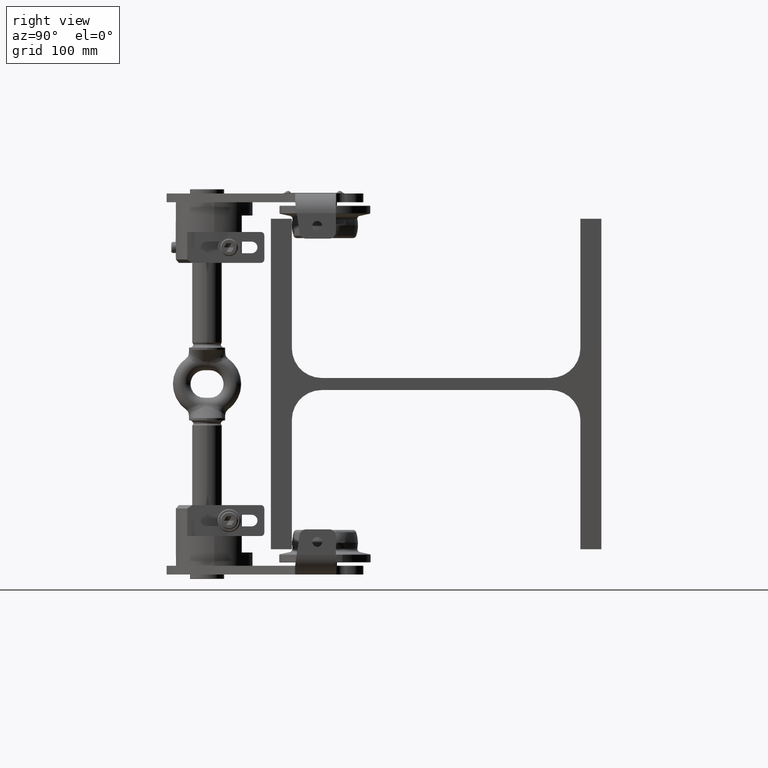
[diagram: clean part render]
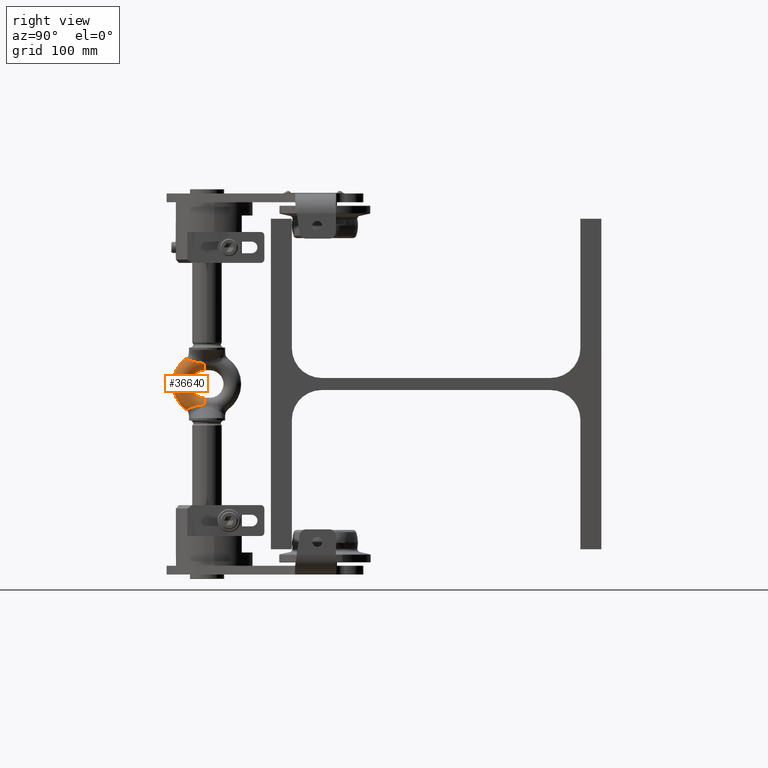
[diagram: same view with one face highlighted and labeled with its STEP entity id]
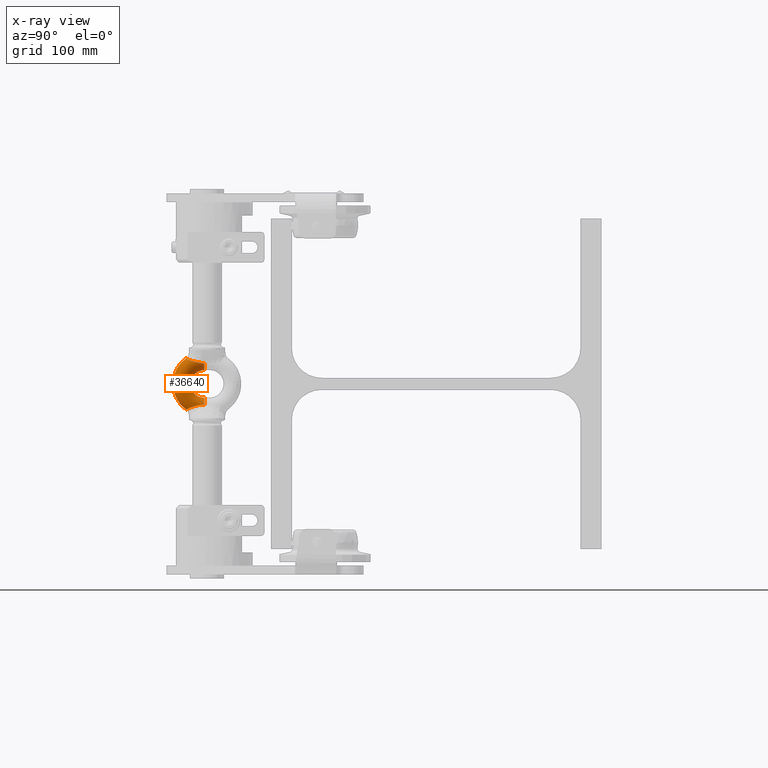
[diagram: x-ray of the same camera — body ghosted, the highlighted face saturated]
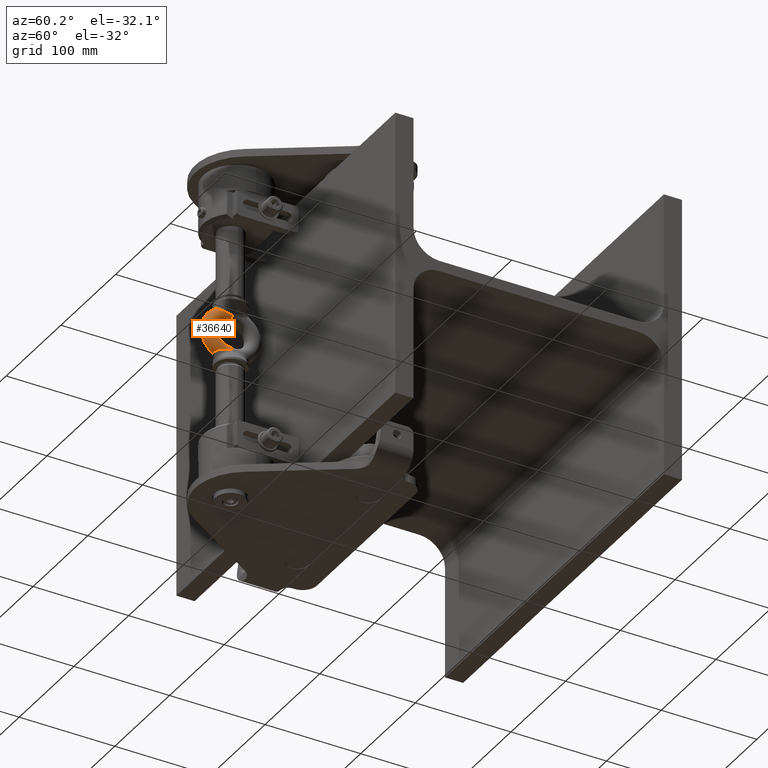
[diagram: same view with one face highlighted and labeled with its STEP entity id]
A machine part, right view. The second image highlights one B-rep face of the part: STEP entity #36640.
The next image is the same camera in x-ray: the body ghosted, the highlighted face saturated — about 0% of this face is hidden behind the body in this view.
A second angle (auxiliary view) of the same face is appended — the face is thin or edge-on in the first view.
In plain terms, the highlighted toroidal blend (fillet) surface has major radius 20.5 mm and minor (blend) radius 8 mm.
Its self-contained STEP definition (entity closure, byte-faithful):
#867 = ORIENTED_EDGE ( 'NONE', *, *, #33441, .T. ) ;
#1017 = CARTESIAN_POINT ( 'NONE',  ( 2.684581708421627200, -226.5798624847581400, -22.97866133798967100 ) ) ;
#1099 = VERTEX_POINT ( 'NONE', #22086 ) ;
#1517 = VERTEX_POINT ( 'NONE', #47041 ) ;
#1541 = CARTESIAN_POINT ( 'NONE',  ( 5.008377864996051100, -225.3136572851188100, -22.31463603133291700 ) ) ;
#2091 = CARTESIAN_POINT ( 'NONE',  ( 7.115797659088086000, -222.2772003494870300, -21.09037363128711100 ) ) ;
#2141 = CARTESIAN_POINT ( 'NONE',  ( 3.038875442017300100, -226.4479951985630600, 22.90519089212007800 ) ) ;
#2400 = CARTESIAN_POINT ( 'NONE',  ( 7.946547436373665000, -214.5186541660387100, 19.13087366678101400 ) ) ;
#2469 = CARTESIAN_POINT ( 'NONE',  ( 8.004049964522636200, -217.4982368697896500, -19.73578060378870100 ) ) ;
#2502 = CARTESIAN_POINT ( 'NONE',  ( 2.680534298383090000, -226.5813101735786900, 22.97946910704840200 ) ) ;
#2579 = CARTESIAN_POINT ( 'NONE',  ( 7.680408942717172700, -220.4045389835411300, 20.50351105377114200 ) ) ;
#2677 = CARTESIAN_POINT ( 'NONE',  ( 7.115797659088098500, -222.2772003494870000, 21.09037363128710000 ) ) ;
#2996 = CARTESIAN_POINT ( 'NONE',  ( 7.794293375498501300, -211.5116878995192200, -18.69520595217544200 ) ) ;
#4694 = ORIENTED_EDGE ( 'NONE', *, *, #15160, .F. ) ;
#5173 = CARTESIAN_POINT ( 'NONE',  ( 6.976448585921846600, -222.6278355580982700, -21.20522582130983100 ) ) ;
#5629 = CIRCLE ( 'NONE', #37979, 8.000000000000000000 ) ;
#6236 = B_SPLINE_CURVE_WITH_KNOTS ( 'NONE', 3,
 ( #2091, #39162, #47812, #43286, #18591, #43476, #2469, #7295, #15035, #7480, #2996, #27778 ),
 .UNSPECIFIED., .F., .F.,
 ( 4, 2, 2, 2, 2, 4 ),
 ( 0.0000000000000000000, 0.001533580770498307200, 0.003067161540996614400, 0.006134323081993228700, 0.009201484622989843100, 0.01226864616398645700 ),
 .UNSPECIFIED. ) ;
#6535 = CARTESIAN_POINT ( 'NONE',  ( 7.115797659088098500, -222.2772003494870000, 21.09037363128710000 ) ) ;
#6631 = CARTESIAN_POINT ( 'NONE',  ( 4.067798449724050700, -225.9411967327429200, 22.63355820024718700 ) ) ;
#6720 = CARTESIAN_POINT ( 'NONE',  ( 7.845395688979208700, -212.5168832150616800, 18.82032143140042600 ) ) ;
#6731 = ORIENTED_EDGE ( 'NONE', *, *, #13798, .T. ) ;
#7037 = CARTESIAN_POINT ( 'NONE',  ( 2.058282987182851900E-014, -210.4999999999998900, 2.697986323860289900E-016 ) ) ;
#7295 = CARTESIAN_POINT ( 'NONE',  ( 7.995320725943482600, -215.5180580018429700, -19.31537106136475000 ) ) ;
#7480 = CARTESIAN_POINT ( 'NONE',  ( 7.845395688979179400, -212.5168832150610900, -18.82032143140034500 ) ) ;
#8036 = AXIS2_PLACEMENT_3D ( 'NONE', #15771, #11291, #44088 ) ;
#9551 = DIRECTION ( 'NONE',  ( 1.000000000000000000, 2.775557561562892000E-017, -4.307375263406503200E-018 ) ) ;
#9714 = CARTESIAN_POINT ( 'NONE',  ( 1.960311243251063800E-014, -210.4999999999998900, 2.697986323860289900E-016 ) ) ;
#9804 = CARTESIAN_POINT ( 'NONE',  ( 5.550679064830429600, -224.8100014896795900, -22.07320338165590100 ) ) ;
#10027 = CARTESIAN_POINT ( 'NONE',  ( 6.476843991741154700, -223.6276094397090600, 21.56942823819872900 ) ) ;
#10541 = CARTESIAN_POINT ( 'NONE',  ( 2.049452867892867200E-014, -210.4999999999992900, -20.50000000000000400 ) ) ;
#11008 = CARTESIAN_POINT ( 'NONE',  ( 7.772744818011069000, -210.5000000000001400, 18.60673879401641900 ) ) ;
#11253 = CARTESIAN_POINT ( 'NONE',  ( 2.058282987182851900E-014, -210.4999999999998900, 2.697986323860289900E-016 ) ) ;
#11291 = DIRECTION ( 'NONE',  ( -2.775557561562885800E-017, 1.000000000000000000, 1.406712654387169000E-014 ) ) ;
#12393 = TOROIDAL_SURFACE ( 'NONE', #27951, 20.50000000000000400, 8.000000000000001800 ) ;
#13317 = CARTESIAN_POINT ( 'NONE',  ( 7.772744818011069000, -210.5000000000001400, 18.60673879401641900 ) ) ;
#13681 = FACE_OUTER_BOUND ( 'NONE', #32499, .T. ) ;
#13765 = CARTESIAN_POINT ( 'NONE',  ( 0.7821438561183776700, -226.9875069253441800, -23.21171234562591900 ) ) ;
#13798 = EDGE_CURVE ( 'NONE', #22068, #48506, #28222, .T. ) ;
#13933 = CARTESIAN_POINT ( 'NONE',  ( 6.450220791794528500, -223.6146817578463700, -21.57063592411131100 ) ) ;
#14341 = CARTESIAN_POINT ( 'NONE',  ( 5.134827054628902900E-013, -227.0144935952065200, 23.22760214257768800 ) ) ;
#14345 = CARTESIAN_POINT ( 'NONE',  ( 0.3900412406416393100, -227.0144935952063700, 23.22760214257774100 ) ) ;
#14619 = CARTESIAN_POINT ( 'NONE',  ( 7.444475844057723000, -221.3539987375814300, 20.79150292960523300 ) ) ;
#14692 = DIRECTION ( 'NONE',  ( 2.775557561562879900E-017, -1.000000000000000000, -2.815551657915896000E-014 ) ) ;
#14917 = EDGE_CURVE ( 'NONE', #26626, #22068, #36497, .T. ) ;
#15035 = CARTESIAN_POINT ( 'NONE',  ( 7.946547436373643700, -214.5186541660383200, -19.13087366678095000 ) ) ;
#15150 = CARTESIAN_POINT ( 'NONE',  ( 7.296752853561817400, -221.8221700038710700, 20.94106434862130300 ) ) ;
#15160 = EDGE_CURVE ( 'NONE', #26626, #1099, #47658, .T. ) ;
#15444 = DIRECTION ( 'NONE',  ( 1.000000000000000000, 2.775557561562892000E-017, -4.307375263406503200E-018 ) ) ;
#15771 = CARTESIAN_POINT ( 'NONE',  ( 2.067113106472836300E-014, -210.5000000000001700, 20.50000000000000400 ) ) ;
#16601 = ORIENTED_EDGE ( 'NONE', *, *, #25281, .T. ) ;
#17697 = CARTESIAN_POINT ( 'NONE',  ( 6.243068305024192600, -223.9267891906337700, -21.69679396571621400 ) ) ;
#18591 = CARTESIAN_POINT ( 'NONE',  ( 7.768457810416231600, -219.9256527036861800, -20.36559298913758200 ) ) ;
#19100 = ORIENTED_EDGE ( 'NONE', *, *, #24675, .F. ) ;
#19415 = CARTESIAN_POINT ( 'NONE',  ( 7.115797659088086000, -222.2772003494870300, -21.09037363128711100 ) ) ;
#21484 = CARTESIAN_POINT ( 'NONE',  ( -4.695818270274881900E-013, -227.0144935952064900, -23.22760214257770200 ) ) ;
#21555 = VERTEX_POINT ( 'NONE', #33915 ) ;
#21662 = CARTESIAN_POINT ( 'NONE',  ( 6.816494311967259600, -222.9657007666796500, -21.32507868774502700 ) ) ;
#21936 = VERTEX_POINT ( 'NONE', #19415 ) ;
#22000 = CARTESIAN_POINT ( 'NONE',  ( 0.3893020162465233300, -227.0144935952064900, -23.22760214257774400 ) ) ;
#22068 = VERTEX_POINT ( 'NONE', #41599 ) ;
#22086 = CARTESIAN_POINT ( 'NONE',  ( 1.960311243251063100E-014, -210.5000000000000600, 12.50000000000000200 ) ) ;
#22685 = CARTESIAN_POINT ( 'NONE',  ( 8.004049964522622000, -217.4982368697899900, 19.73578060378875100 ) ) ;
#23145 = ORIENTED_EDGE ( 'NONE', *, *, #29015, .T. ) ;
#23166 = CARTESIAN_POINT ( 'NONE',  ( 4.988067054071802200, -225.2912965507999600, 22.30699104199575400 ) ) ;
#23961 = ORIENTED_EDGE ( 'NONE', *, *, #31832, .T. ) ;
#24675 = EDGE_CURVE ( 'NONE', #1099, #45069, #48026, .T. ) ;
#25281 = EDGE_CURVE ( 'NONE', #48506, #1517, #28892, .T. ) ;
#26178 = CARTESIAN_POINT ( 'NONE',  ( 4.067949735381345600, -225.9410754172484100, -22.63349865986865300 ) ) ;
#26252 = DIRECTION ( 'NONE',  ( -2.775557561562879000E-017, 1.000000000000000000, 0.0000000000000000000 ) ) ;
#26510 = B_SPLINE_CURVE_WITH_KNOTS ( 'NONE', 3,
 ( #21484, #22000, #13765, #33779, #46906, #1017, #30142, #29787, #26178, #1541, #9804, #17697, #13933, #21662, #5173, #33951 ),
 .UNSPECIFIED., .F., .F.,
 ( 4, 2, 2, 2, 2, 2, 2, 4 ),
 ( 0.009384307911051761500, 0.01055512320254911200, 0.01172593849404646300, 0.01289675378554381600, 0.01406756907704116700, 0.01640919966003587200, 0.01758001495153322500, 0.01875083024303057400 ),
 .UNSPECIFIED. ) ;
#26626 = VERTEX_POINT ( 'NONE', #13317 ) ;
#26943 = DIRECTION ( 'NONE',  ( 1.000000000000000000, 2.775557561562892000E-017, -4.307375263406503200E-018 ) ) ;
#26972 = CARTESIAN_POINT ( 'NONE',  ( 4.695586035717802500, -225.5223197800754600, 22.42068333153366700 ) ) ;
#27442 = DIRECTION ( 'NONE',  ( 1.000000000000000000, 0.0000000000000000000, 0.0000000000000000000 ) ) ;
#27778 = CARTESIAN_POINT ( 'NONE',  ( 7.772744818011050300, -210.4999999999993500, -18.60673879401634800 ) ) ;
#27951 = AXIS2_PLACEMENT_3D ( 'NONE', #7037, #15444, #44104 ) ;
#28222 = B_SPLINE_CURVE_WITH_KNOTS ( 'NONE', 3,
 ( #2677, #43163, #10027, #38826, #47857, #23166, #26972, #6631, #47314, #2141, #2502, #35255, #42981, #47134, #14345, #35066 ),
 .UNSPECIFIED., .F., .F.,
 ( 4, 2, 2, 2, 2, 2, 2, 4 ),
 ( 8.673617379884035500E-019, 0.002346076977764664700, 0.003519115466646966500, 0.004692153955529268700, 0.005865192444411570900, 0.007038230933293871400, 0.008211269422176172700, 0.009384307911058473200 ),
 .UNSPECIFIED. ) ;
#28892 = CIRCLE ( 'NONE', #35136, 28.49999999999999600 ) ;
#29015 = EDGE_CURVE ( 'NONE', #21936, #21555, #6236, .T. ) ;
#29787 = CARTESIAN_POINT ( 'NONE',  ( 3.732080281359232200, -226.1284588361517400, -22.73248660065657500 ) ) ;
#30142 = CARTESIAN_POINT ( 'NONE',  ( 3.041883532659406300, -226.4467317841316600, -22.90449928581668400 ) ) ;
#31042 = DIRECTION ( 'NONE',  ( -2.775557561562888900E-017, 1.000000000000000000, 0.0000000000000000000 ) ) ;
#31832 = EDGE_CURVE ( 'NONE', #21555, #45069, #5629, .T. ) ;
#32499 = EDGE_LOOP ( 'NONE', ( #6731, #16601, #867, #23145, #23961, #19100, #4694, #33310 ) ) ;
#33310 = ORIENTED_EDGE ( 'NONE', *, *, #14917, .T. ) ;
#33441 = EDGE_CURVE ( 'NONE', #1517, #21936, #26510, .T. ) ;
#33779 = CARTESIAN_POINT ( 'NONE',  ( 1.561087455248035400, -226.8778867308832000, -23.14806439596982900 ) ) ;
#33915 = CARTESIAN_POINT ( 'NONE',  ( 7.772744818011050300, -210.4999999999993500, -18.60673879401634800 ) ) ;
#33951 = CARTESIAN_POINT ( 'NONE',  ( 7.115797659088086000, -222.2772003494870300, -21.09037363128711100 ) ) ;
#35066 = CARTESIAN_POINT ( 'NONE',  ( 5.134827054628902900E-013, -227.0144935952065200, 23.22760214257768800 ) ) ;
#35136 = AXIS2_PLACEMENT_3D ( 'NONE', #11253, #26943, #31042 ) ;
#35255 = CARTESIAN_POINT ( 'NONE',  ( 1.939241863291306700, -226.7968534449550800, 23.10124779497075700 ) ) ;
#36497 = B_SPLINE_CURVE_WITH_KNOTS ( 'NONE', 3,
 ( #11008, #51996, #6720, #2400, #39634, #22685, #51468, #51648, #2579, #14619, #15150, #6535 ),
 .UNSPECIFIED., .F., .F.,
 ( 4, 2, 2, 2, 2, 4 ),
 ( 0.0000000000000000000, 0.003042052300419170400, 0.006084104600838340800, 0.009126156901257511200, 0.01064718305146713700, 0.01216820920167676300 ),
 .UNSPECIFIED. ) ;
#36640 = ADVANCED_FACE ( 'NONE', ( #13681 ), #12393, .T. ) ;
#37979 = AXIS2_PLACEMENT_3D ( 'NONE', #10541, #14692, #27442 ) ;
#38826 = CARTESIAN_POINT ( 'NONE',  ( 5.785289169389104200, -224.5112147008046000, 21.94579686205202100 ) ) ;
#39162 = CARTESIAN_POINT ( 'NONE',  ( 7.296752853561819100, -221.8221700038709500, -20.94106434862127800 ) ) ;
#39472 = CARTESIAN_POINT ( 'NONE',  ( 1.960311243251063800E-014, -210.4999999999995200, -12.50000000000000200 ) ) ;
#39634 = CARTESIAN_POINT ( 'NONE',  ( 7.995320725943498600, -215.5180580018434600, 19.31537106136486400 ) ) ;
#41599 = CARTESIAN_POINT ( 'NONE',  ( 7.115797659088098500, -222.2772003494870000, 21.09037363128710000 ) ) ;
#41621 = AXIS2_PLACEMENT_3D ( 'NONE', #9714, #9551, #26252 ) ;
#42981 = CARTESIAN_POINT ( 'NONE',  ( 1.552567587300448100, -226.8793732883091800, 23.14892453142991300 ) ) ;
#43163 = CARTESIAN_POINT ( 'NONE',  ( 6.836739784918894000, -222.9793759269821900, 21.32037450078109600 ) ) ;
#43286 = CARTESIAN_POINT ( 'NONE',  ( 7.680408942717191300, -220.4045389835410400, -20.50351105377112800 ) ) ;
#43476 = CARTESIAN_POINT ( 'NONE',  ( 7.964250997897861100, -218.4779372808662000, -19.97196383166173600 ) ) ;
#44088 = DIRECTION ( 'NONE',  ( 1.000000000000000000, 0.0000000000000000000, 0.0000000000000000000 ) ) ;
#44104 = DIRECTION ( 'NONE',  ( 4.307375263406503200E-018, -7.268044387092812700E-049, 1.000000000000000000 ) ) ;
#45069 = VERTEX_POINT ( 'NONE', #39472 ) ;
#46906 = CARTESIAN_POINT ( 'NONE',  ( 1.945424461738996600, -226.7953228642410600, -23.10037302618163200 ) ) ;
#47041 = CARTESIAN_POINT ( 'NONE',  ( -4.695818270274881900E-013, -227.0144935952064900, -23.22760214257770200 ) ) ;
#47134 = CARTESIAN_POINT ( 'NONE',  ( 0.7785727217651451400, -226.9877173984162100, 23.21183759148219400 ) ) ;
#47314 = CARTESIAN_POINT ( 'NONE',  ( 3.731086207009667500, -226.1290402413844400, 22.73279208981054100 ) ) ;
#47658 = CIRCLE ( 'NONE', #8036, 8.000000000000000000 ) ;
#47812 = CARTESIAN_POINT ( 'NONE',  ( 7.444475844057745200, -221.3539987375814100, -20.79150292960519800 ) ) ;
#47857 = CARTESIAN_POINT ( 'NONE',  ( 5.532421808453610100, -224.7864180564754700, 22.06984082043851500 ) ) ;
#48026 = CIRCLE ( 'NONE', #41621, 12.50000000000001100 ) ;
#48506 = VERTEX_POINT ( 'NONE', #14341 ) ;
#51468 = CARTESIAN_POINT ( 'NONE',  ( 7.964250997897838000, -218.4779372808665100, 19.97196383166182100 ) ) ;
#51648 = CARTESIAN_POINT ( 'NONE',  ( 7.768457810416197900, -219.9256527036863000, 20.36559298913764600 ) ) ;
#51996 = CARTESIAN_POINT ( 'NONE',  ( 7.794293375498530600, -211.5116878995198700, 18.69520595217552400 ) ) ;